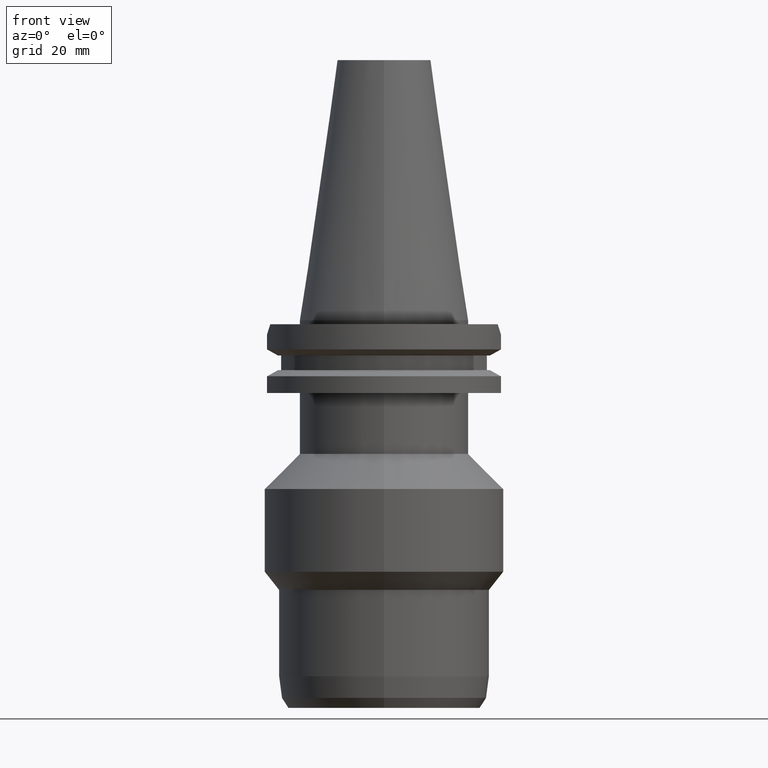
[diagram: clean part render]
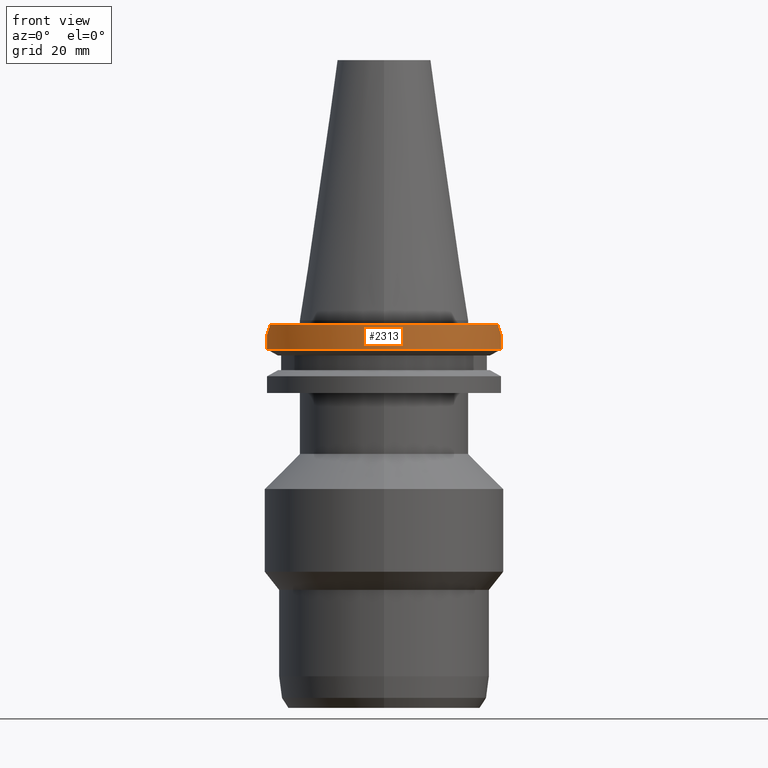
[diagram: same view with one face highlighted and labeled with its STEP entity id]
A machine part, front view. The second image highlights one B-rep face of the part: STEP entity #2313.
In plain terms, the highlighted cylindrical surface (partial cylindrical patch) has radius 31.75 mm, axis along (0, 0, -1).
Its self-contained STEP definition (entity closure, byte-faithful):
#657=CARTESIAN_POINT('',(3.067550146399E1,-8.190000606407E0,-7.601327811715E0));
#871=CARTESIAN_POINT('',(0.E0,2.164471368983E-14,-1.E0));
#872=DIRECTION('',(0.E0,0.E0,-1.E0));
#873=DIRECTION('',(9.393382785306E-1,-3.429921259843E-1,0.E0));
#874=AXIS2_PLACEMENT_3D('',#871,#872,#873);
#879=CARTESIAN_POINT('',(0.E0,2.164471368983E-14,-1.E0));
#880=DIRECTION('',(0.E0,0.E0,-1.E0));
#881=DIRECTION('',(0.E0,-1.E0,0.E0));
#882=AXIS2_PLACEMENT_3D('',#879,#880,#881);
#926=CARTESIAN_POINT('',(2.982399034335E1,-1.089E1,-1.000000000001E0));
#927=CARTESIAN_POINT('',(3.015017741992E1,-9.996685011754E0,-1.893314988246E0));
#928=CARTESIAN_POINT('',(3.043345108244E1,-9.096596073173E0,-2.793403926827E0));
#929=CARTESIAN_POINT('',(3.067550162589E1,-8.19E0,-3.7E0));
#934=DIRECTION('',(-4.149952334243E-8,-1.554361652636E-7,-1.E0));
#935=VECTOR('',#934,3.901327811715E0);
#936=CARTESIAN_POINT('',(3.067550162589E1,-8.19E0,-3.7E0));
#937=LINE('',#936,#935);
#941=DIRECTION('',(8.604053470649E-9,-3.222588451522E-8,1.E0));
#942=VECTOR('',#941,3.901334354445E0);
#943=CARTESIAN_POINT('',(-3.067550165946E1,-8.189999874276E0,
-7.601334354445E0));
#944=LINE('',#943,#942);
#948=CARTESIAN_POINT('',(-3.067550162589E1,-8.19E0,-3.7E0));
#949=CARTESIAN_POINT('',(-3.043345108244E1,-9.096596073173E0,
-2.793403926827E0));
#950=CARTESIAN_POINT('',(-3.015017741992E1,-9.996685011754E0,
-1.893314988246E0));
#951=CARTESIAN_POINT('',(-2.982399034335E1,-1.089E1,-1.000000000001E0));
#956=CARTESIAN_POINT('',(0.E0,1.121722380079E-14,-7.601333230926E0));
#957=DIRECTION('',(0.E0,0.E0,1.E0));
#958=DIRECTION('',(-9.661575315241E-1,-2.579527559055E-1,0.E0));
#959=AXIS2_PLACEMENT_3D('',#956,#957,#958);
#964=CARTESIAN_POINT('',(0.E0,1.121722380079E-14,-7.601333230926E0));
#965=DIRECTION('',(0.E0,0.E0,1.E0));
#966=DIRECTION('',(0.E0,-1.E0,0.E0));
#967=AXIS2_PLACEMENT_3D('',#964,#965,#966);
#1423=VERTEX_POINT('',#657);
#1424=CARTESIAN_POINT('',(3.067550162589E1,-8.19E0,-3.7E0));
#1425=VERTEX_POINT('',#1424);
#1438=CARTESIAN_POINT('',(-3.067550162589E1,-8.19E0,-3.7E0));
#1439=VERTEX_POINT('',#1438);
#1440=CARTESIAN_POINT('',(-3.067550165946E1,-8.189999874276E0,
-7.601334354445E0));
#1441=VERTEX_POINT('',#1440);
#1492=CARTESIAN_POINT('',(0.E0,-3.175E1,-7.601333230926E0));
#1493=VERTEX_POINT('',#1492);
#1497=VERTEX_POINT('',#926);
#1498=VERTEX_POINT('',#951);
#1499=CARTESIAN_POINT('',(-1.432899828923E-14,-3.175E1,-1.E0));
#1500=VERTEX_POINT('',#1499);
#2295=CARTESIAN_POINT('',(0.E0,2.164471368983E-14,7.67425E1));
#2296=DIRECTION('',(0.E0,0.E0,-1.E0));
#2297=DIRECTION('',(0.E0,-1.E0,0.E0));
#2298=AXIS2_PLACEMENT_3D('',#2295,#2296,#2297);
#2299=CYLINDRICAL_SURFACE('',#2298,3.175E1);
#2300=ORIENTED_EDGE('',*,*,#2287,.T.);
#2301=ORIENTED_EDGE('',*,*,#2075,.T.);
#2303=ORIENTED_EDGE('',*,*,#2302,.F.);
#2305=ORIENTED_EDGE('',*,*,#2304,.F.);
#2306=ORIENTED_EDGE('',*,*,#2110,.T.);
#2308=ORIENTED_EDGE('',*,*,#2307,.T.);
#2309=ORIENTED_EDGE('',*,*,#2263,.F.);
#2310=ORIENTED_EDGE('',*,*,#2261,.F.);
#2311=EDGE_LOOP('',(#2300,#2301,#2303,#2305,#2306,#2308,#2309,#2310));
#2312=FACE_OUTER_BOUND('',#2311,.F.);
#875=CIRCLE('',#874,3.175E1);
#883=CIRCLE('',#882,3.175E1);
#930=B_SPLINE_CURVE_WITH_KNOTS('',3,(#926,#927,#928,#929),.UNSPECIFIED.,.F.,.F.,
(4,4),(0.E0,1.E0),.UNSPECIFIED.);
#952=B_SPLINE_CURVE_WITH_KNOTS('',3,(#948,#949,#950,#951),.UNSPECIFIED.,.F.,.F.,
(4,4),(0.E0,1.E0),.UNSPECIFIED.);
#960=CIRCLE('',#959,3.175E1);
#968=CIRCLE('',#967,3.175E1);
#2075=EDGE_CURVE('',#1425,#1423,#937,.T.);
#2110=EDGE_CURVE('',#1441,#1439,#944,.T.);
#2261=EDGE_CURVE('',#1497,#1500,#875,.T.);
#2263=EDGE_CURVE('',#1500,#1498,#883,.T.);
#2287=EDGE_CURVE('',#1497,#1425,#930,.T.);
#2302=EDGE_CURVE('',#1493,#1423,#968,.T.);
#2304=EDGE_CURVE('',#1441,#1493,#960,.T.);
#2307=EDGE_CURVE('',#1439,#1498,#952,.T.);
#2313=ADVANCED_FACE('',(#2312),#2299,.T.);